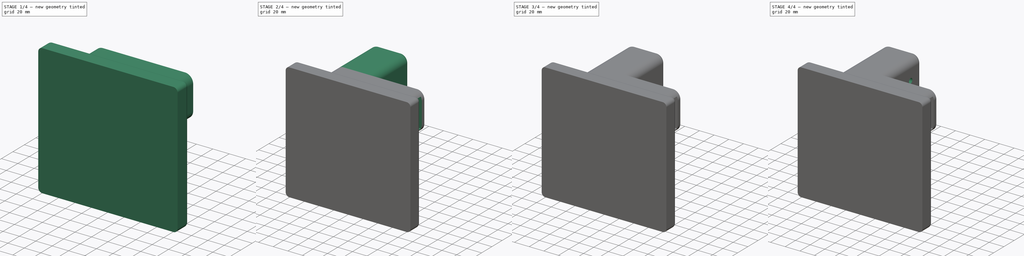
[diagram: build sequence overview — one tinted view per stage of 4, left to right]
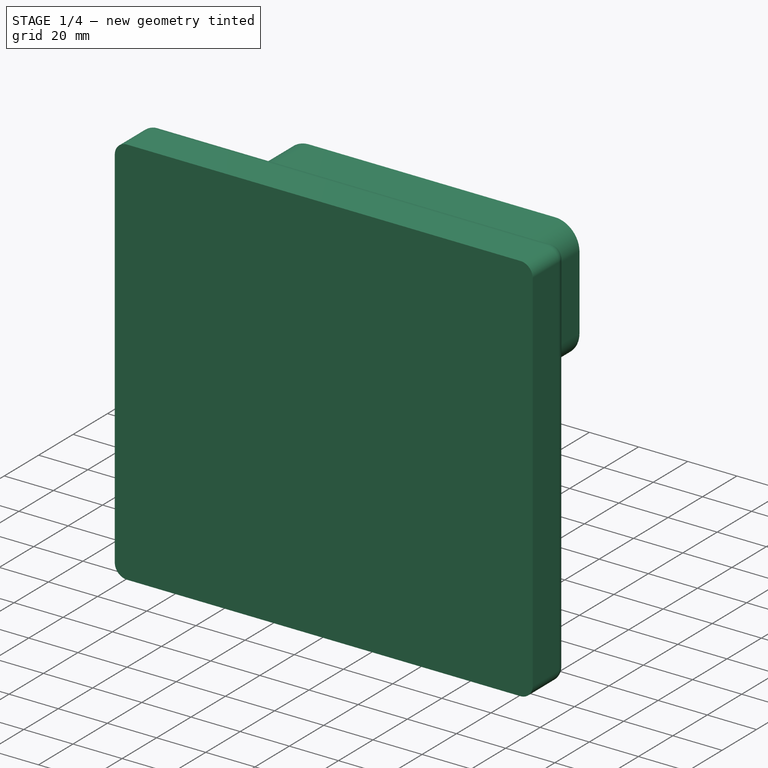
[diagram: stage 1 of 4 — iso view after this stage's code; geometry added in this stage tinted green]
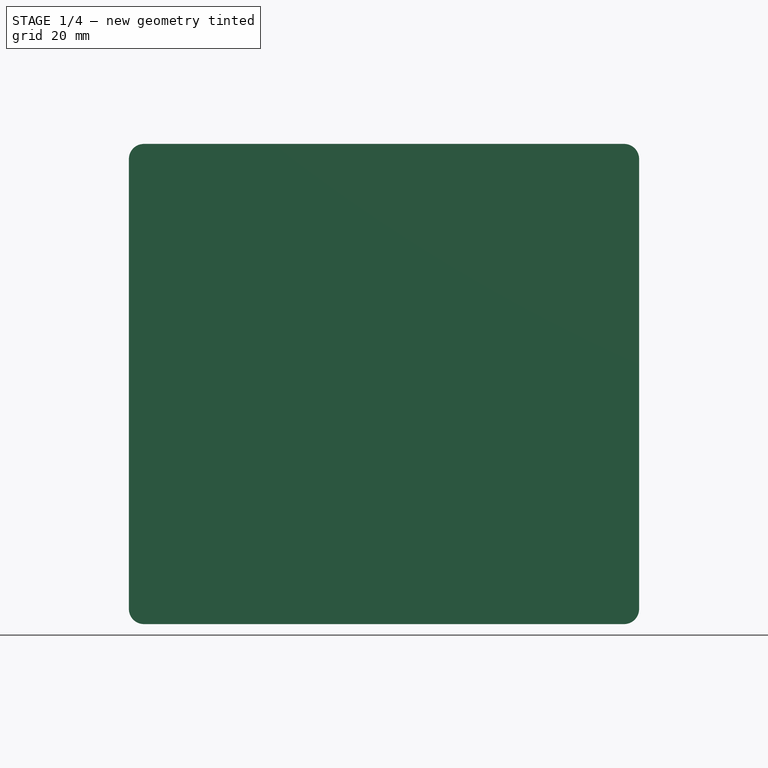
[diagram: stage 1 of 4 — front view after this stage's code; geometry added in this stage tinted green]
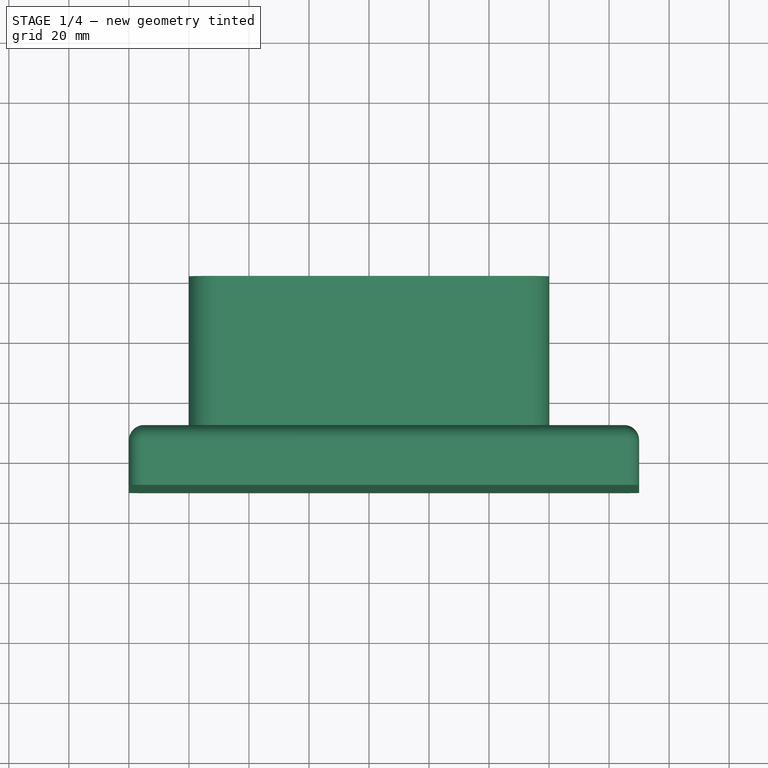
[diagram: stage 1 of 4 — top view after this stage's code; geometry added in this stage tinted green]
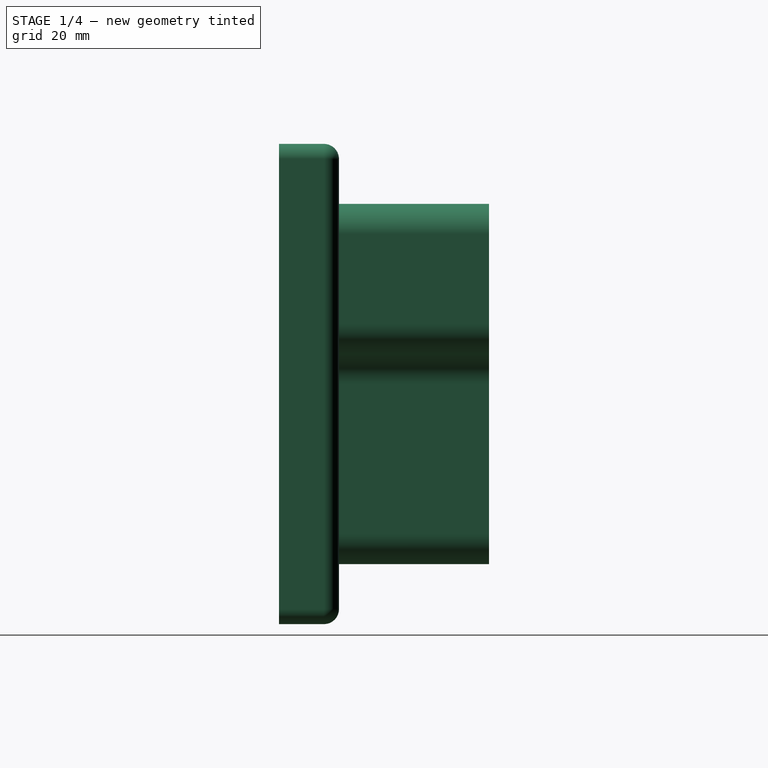
[diagram: stage 1 of 4 — right view after this stage's code; geometry added in this stage tinted green]
FCSTD DOCUMENT  (FreeCAD 0.21R33771 (Git))
Label: solow-cube-back-bottom-corner-left
License: All rights reserved
LicenseURL: http://en.wikipedia.org/wiki/All_rights_reserved
objects: Sketcher::SketchObject×9, PartDesign::Pad×3, PartDesign::Pocket×3, PartDesign::Hole×3, PartDesign::Fillet×2, PartDesign::Body×1
note: 32 computed .brp shape members not serialized (recipe doc carries the construction recipe); baked Part::Feature solids carry a one-line shape summary decoded from their .brp

FEATURE [Sketcher::SketchObject] Sketch
  FullyConstrained = true
  MapMode = 5
  Placement = pos=(0,0,0) rot=(1,0,0;1.5708rad)
  Support = -> [XZ_Plane]
  sketch-geometry (13):
    g0: LineSegment StartX=0 StartY=0 StartZ=0 EndX=0 EndY=40 EndZ=0
    g1: ArcOfCircle CenterX=10 CenterY=40 CenterZ=0 NormalX=0 NormalY=0 NormalZ=1 AngleXU=0 Radius=10 StartAngle=1.5708 EndAngle=3.14159
    g2: LineSegment StartX=10 StartY=50 StartZ=0 EndX=110 EndY=50 EndZ=0
    g3: ArcOfCircle CenterX=110 CenterY=40 CenterZ=0 NormalX=0 NormalY=0 NormalZ=1 AngleXU=0 Radius=10 StartAngle=6.28319 EndAngle=7.85398
    g4: LineSegment StartX=50 StartY=-10 StartZ=0 EndX=50 EndY=-60 EndZ=0
    g5: ArcOfCircle CenterX=40 CenterY=-60 CenterZ=0 NormalX=0 NormalY=0 NormalZ=1 AngleXU=0 Radius=10 StartAngle=4.71239 EndAngle=6.28319
    g6: LineSegment StartX=40 StartY=-70 StartZ=0 EndX=10 EndY=-70 EndZ=0
    g7: ArcOfCircle CenterX=10 CenterY=-60 CenterZ=0 NormalX=0 NormalY=0 NormalZ=1 AngleXU=0 Radius=10 StartAngle=3.14159 EndAngle=4.71239
    g8: LineSegment StartX=0 StartY=-60 StartZ=0 EndX=0 EndY=0 EndZ=0
    g9: LineSegment StartX=120 StartY=40 StartZ=0 EndX=120 EndY=10 EndZ=0
    g10: ArcOfCircle CenterX=110 CenterY=10 CenterZ=0 NormalX=0 NormalY=0 NormalZ=1 AngleXU=0 Radius=10 StartAngle=4.71238 EndAngle=6.28319
    g11: LineSegment StartX=110 StartY=8.7379e-11 StartZ=0 EndX=60 EndY=0 EndZ=0
    g12: ArcOfCircle CenterX=60 CenterY=-10 CenterZ=0 NormalX=0 NormalY=0 NormalZ=1 AngleXU=0 Radius=10 StartAngle=1.5708 EndAngle=3.14159
  constraints (36):
    c: Coincident(g-1,g0)
    c: PointOnObject(g0,g-2)
    c: Tangent(g0,g1) = 1.5708
    c: Coincident(g1,g2)
    c: Horizontal(g2)
    c: Tangent(g2,g3) = 1.5708
    c: Vertical(g4)
    c: Tangent(g4,g5) = 1.5708
    c: Tangent(g5,g6) = 1.5708
    c: Tangent(g6,g7) = 1.5708
    c: PointOnObject(g7,g-2)
    c: Coincident(g7,g8)
    c: Coincident(g8,g0)
    c: DistanceY(g0,g0) = 40
    c: Radius(g1) = 10
    c: Radius(g3) = 10
    c: DistanceX(g2,g2) = 100
    c: Radius(g7) = 10
    c: DistanceY(g8,g8) = 60
    c: Radius(g5) = 10
    c: Horizontal(g6)
    c: DistanceX(g7,g7) = 10
    c: DistanceX(g0,g1) = 10
    c: DistanceX(g0,g3) = 120
    c: Tangent(g3,g9) = 1.5708
    c: Tangent(g9,g10) = 1.5708
    c: PointOnObject(g10,g-1)
    c: Coincident(g10,g11)
    c: PointOnObject(g11,g-1)
    c: Tangent(g11,g12) = -1.5708
    c: Coincident(g12,g4)
    c: Radius(g12) = 10
    c: Radius(g10) = 10
    c: DistanceX(g7,g4) = 50
    c: DistanceX(g0,g11) = 60
    c: DistanceY(g9,g9) = 30
FEATURE [PartDesign::Pad] Pad
  Direction = (0,-1,2e-16)
  Length = 50
  Length2 = 10
  Placement = pos=(0,0,0) rot=(1,0,0;1.5708rad)
  Profile = -> Sketch
  ReferenceAxis = -> Sketch [N_Axis]
  Type = 0
FEATURE [Sketcher::SketchObject] Sketch001
  FullyConstrained = true
  MapMode = 5
  Placement = pos=(0,-50,1.11e-14) rot=(1,0,0;1.5708rad)
  sketch-geometry (4):
    g0: LineSegment StartX=-20 StartY=70 StartZ=0 EndX=150 EndY=70 EndZ=0
    g1: LineSegment StartX=150 StartY=70 StartZ=0 EndX=150 EndY=-90 EndZ=0
    g2: LineSegment StartX=150 StartY=-90 StartZ=0 EndX=-20 EndY=-90 EndZ=0
    g3: LineSegment StartX=-20 StartY=-90 StartZ=0 EndX=-20 EndY=70 EndZ=0
  constraints (12):
    c: Coincident(g0,g1)
    c: Coincident(g1,g2)
    c: Coincident(g2,g3)
    c: Coincident(g3,g0)
    c: Horizontal(g0)
    c: Horizontal(g2)
    c: Vertical(g1)
    c: Vertical(g3)
    c: DistanceY(g-1,g0) = 70
    c: DistanceY(g2,g-1) = 90
    c: DistanceX(g2,g-1) = 20
    c: DistanceX(g-1,g0) = 150
FEATURE [PartDesign::Pad] Pad001
  BaseFeature = -> Pad
  Direction = (0,-1,2e-16)
  Length = 20
  Length2 = 10
  Placement = pos=(0,0,0) rot=(1,0,0;1.5708rad)
  Profile = -> Sketch001
  ReferenceAxis = -> Sketch001 [N_Axis]
  Type = 0
FEATURE [PartDesign::Fillet] Fillet
  Base = -> Pad001 [Edge1,Edge5,Edge2,Edge3,Edge6,Edge9,Edge8,Edge11]
  BaseFeature = -> Pad001
  Placement = pos=(0,0,0) rot=(1,0,0;1.5708rad)
  Radius = 5
  SupportTransform = false
  UseAllEdges = false
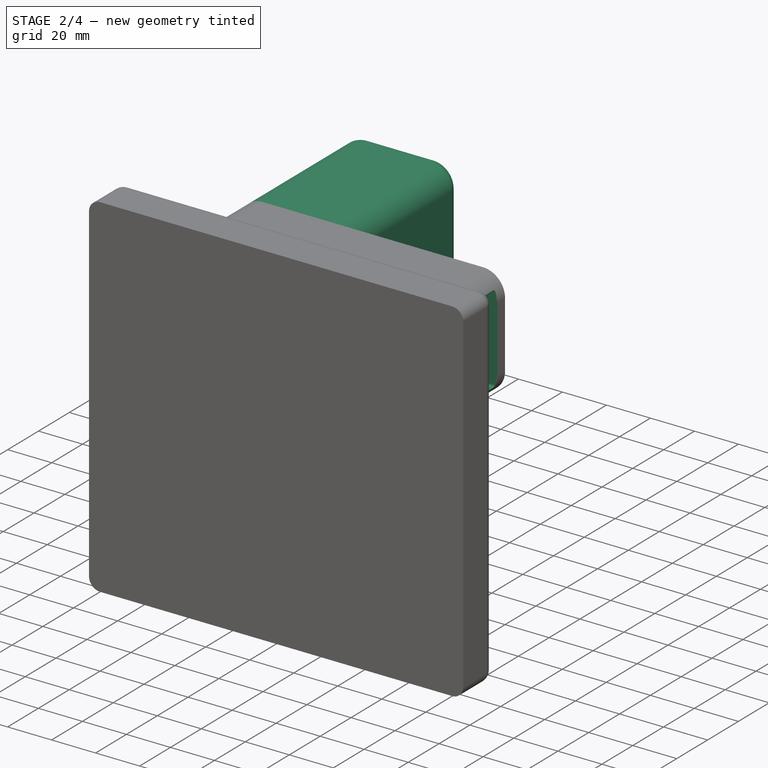
[diagram: stage 2 of 4 — iso view after this stage's code; geometry added in this stage tinted green]
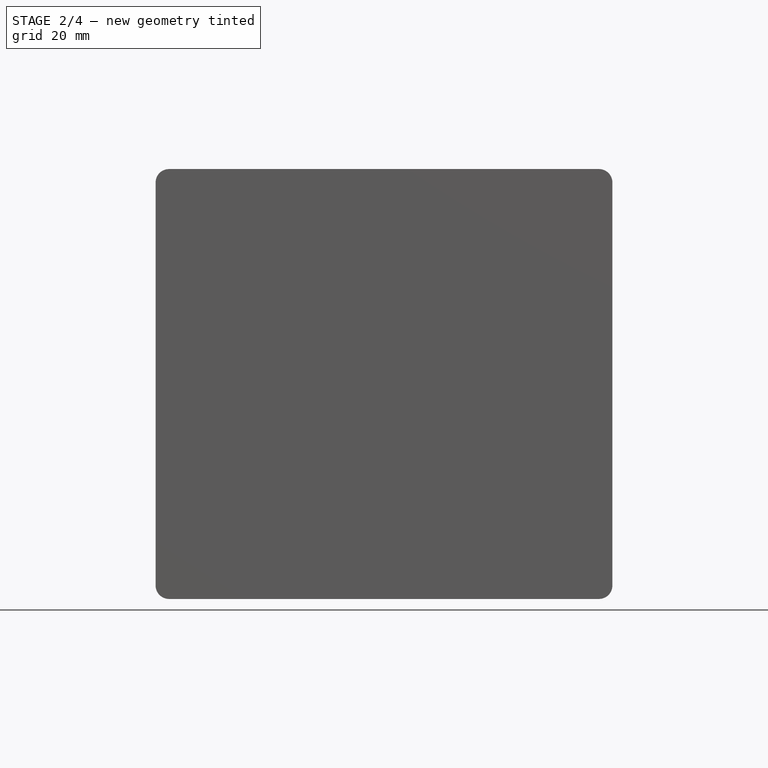
[diagram: stage 2 of 4 — front view after this stage's code; geometry added in this stage tinted green]
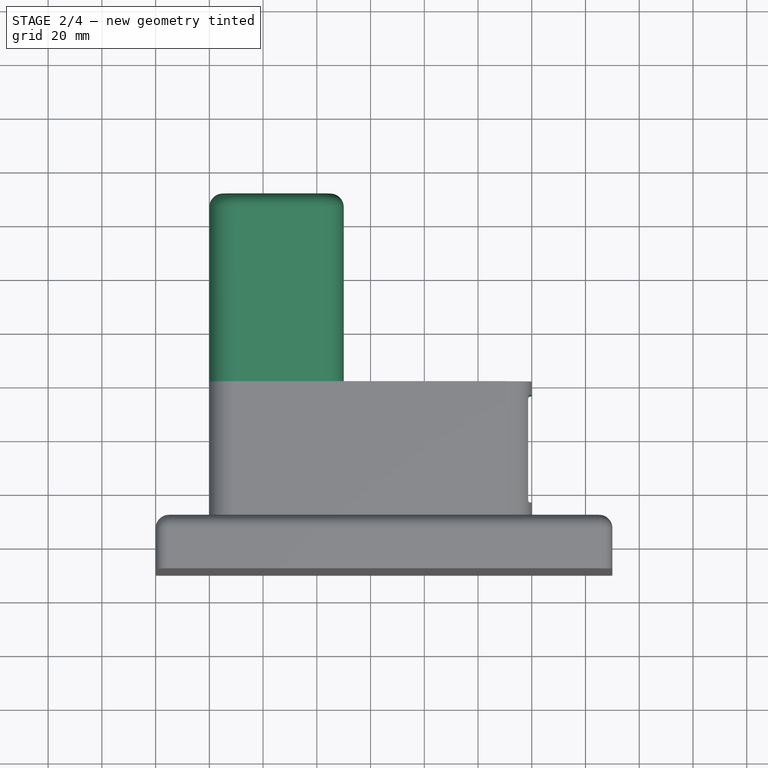
[diagram: stage 2 of 4 — top view after this stage's code; geometry added in this stage tinted green]
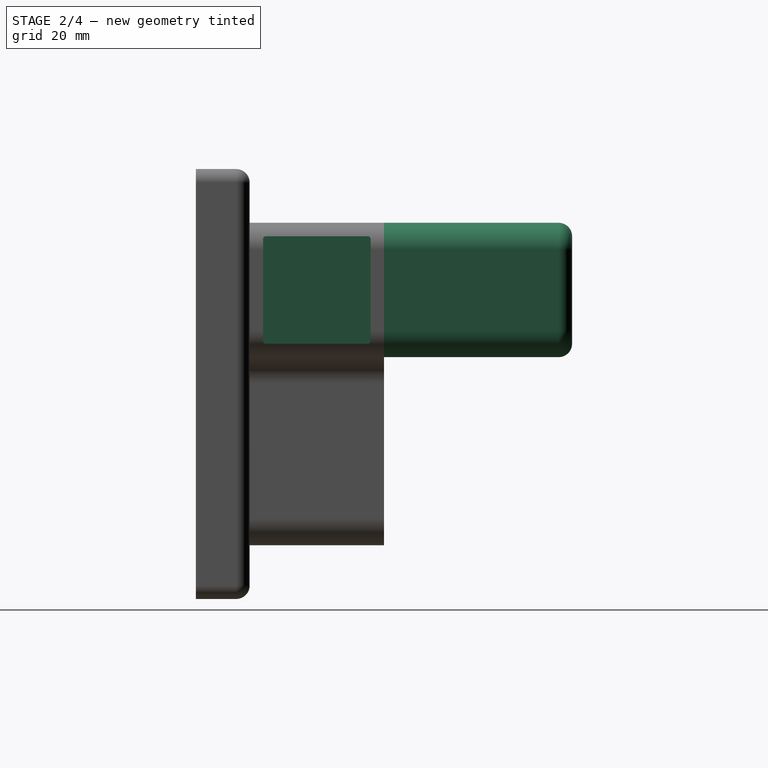
[diagram: stage 2 of 4 — right view after this stage's code; geometry added in this stage tinted green]
FEATURE [Sketcher::SketchObject] Sketch002
  FullyConstrained = true
  MapMode = 5
  Placement = pos=(0,0,0) rot=(-1,0,0;1.5708rad)
  sketch-geometry (8):
    g0: ArcOfCircle CenterX=10 CenterY=-40 CenterZ=0 NormalX=0 NormalY=0 NormalZ=1 AngleXU=0 Radius=10 StartAngle=3.14159 EndAngle=4.71239
    g1: LineSegment StartX=10 StartY=-50 StartZ=0 EndX=40 EndY=-50 EndZ=0
    g2: ArcOfCircle CenterX=40 CenterY=-40 CenterZ=0 NormalX=0 NormalY=0 NormalZ=1 AngleXU=0 Radius=10 StartAngle=4.71239 EndAngle=6.28319
    g3: LineSegment StartX=9.9298e-12 StartY=-40 StartZ=0 EndX=-4.22766e-05 EndY=-10 EndZ=0
    g4: ArcOfCircle CenterX=9.99996 CenterY=-10 CenterZ=0 NormalX=0 NormalY=0 NormalZ=1 AngleXU=0 Radius=10 StartAngle=1.57079 EndAngle=3.14159
    g5: LineSegment StartX=10 StartY=-8.93667e-11 StartZ=0 EndX=40 EndY=0 EndZ=0
    g6: ArcOfCircle CenterX=40 CenterY=-10 CenterZ=0 NormalX=0 NormalY=0 NormalZ=1 AngleXU=0 Radius=10 StartAngle=1.98484e-08 EndAngle=1.5708
    g7: LineSegment StartX=50 StartY=-10 StartZ=0 EndX=50 EndY=-40 EndZ=0
  constraints (24):
    c: Coincident(g0,g1)
    c: Horizontal(g1)
    c: Tangent(g1,g2) = -1.5708
    c: Radius(g2) = 10
    c: Tangent(g0,g3) = 1.5708
    c: Tangent(g3,g4) = 1.5708
    c: PointOnObject(g4,g-1)
    c: Coincident(g4,g5)
    c: PointOnObject(g5,g-1)
    c: Tangent(g5,g6) = 1.5708
    c: Coincident(g6,g7)
    c: Coincident(g7,g2)
    c: DistanceX(g-1,g6) = 40
    c: DistanceX(g0,g2) = 40
    c: DistanceX(g-1,g4) = 10
    c: DistanceX(g-1,g6) = 50
    c: DistanceX(g-1,g2) = 50
    c: DistanceX(g-1,g2) = 40
    c: DistanceX(g-1,g0) = 10
    c: DistanceY(g0,g-1) = 40
    c: DistanceY(g2,g-1) = 40
    c: Radius(g4) = 10
    c: Radius(g6) = 10
    c: Radius(g0) = 10
FEATURE [PartDesign::Pad] Pad002
  BaseFeature = -> Fillet
  Direction = (0,1,2e-16)
  Length = 70
  Length2 = 10
  Placement = pos=(0,0,0) rot=(1,0,0;1.5708rad)
  Profile = -> Sketch002
  ReferenceAxis = -> Sketch002 [N_Axis]
  Type = 0
FEATURE [PartDesign::Fillet] Fillet001
  Base = -> Pad002 [Edge103]
  BaseFeature = -> Pad002
  Placement = pos=(0,0,0) rot=(1,0,0;1.5708rad)
  Radius = 5
  SupportTransform = false
  UseAllEdges = false
FEATURE [Sketcher::SketchObject] Sketch003
  FullyConstrained = true
  MapMode = 5
  Placement = pos=(120,0,-4.68368e-06) rot=(0.707107,0,0.707107;3.14159rad)
  sketch-geometry (8):
    g0: LineSegment StartX=6.00044 StartY=5 StartZ=0 EndX=44 EndY=5 EndZ=0
    g1: ArcOfCircle CenterX=44 CenterY=6 CenterZ=0 NormalX=0 NormalY=0 NormalZ=1 AngleXU=0 Radius=1 StartAngle=4.71239 EndAngle=6.28319
    g2: LineSegment StartX=45 StartY=6 StartZ=0 EndX=45 EndY=44 EndZ=0
    g3: ArcOfCircle CenterX=44 CenterY=44 CenterZ=0 NormalX=0 NormalY=0 NormalZ=1 AngleXU=0 Radius=1 StartAngle=8.00925e-08 EndAngle=1.5708
    g4: LineSegment StartX=44 StartY=45 StartZ=0 EndX=6 EndY=45 EndZ=0
    g5: ArcOfCircle CenterX=6 CenterY=44 CenterZ=0 NormalX=0 NormalY=0 NormalZ=1 AngleXU=0 Radius=1 StartAngle=1.5708 EndAngle=3.14159
    g6: LineSegment StartX=5 StartY=44 StartZ=0 EndX=5 EndY=6 EndZ=0
    g7: ArcOfCircle CenterX=6 CenterY=6 CenterZ=0 NormalX=0 NormalY=0 NormalZ=1 AngleXU=0 Radius=1 StartAngle=3.14159 EndAngle=4.71283
  constraints (27):
    c: Coincident(g3,g4)
    c: Tangent(g4,g5) = -1.5708
    c: Coincident(g5,g6)
    c: Coincident(g7,g0)
    c: Horizontal(g0)
    c: DistanceY(g-1,g0) = 5
    c: DistanceX(g-1,g7) = 5
    c: Coincident(g7,g6)
    c: Vertical(g6)
    c: Radius(g7) = 1
    c: Radius(g5) = 1
    c: DistanceX(g4,g4) = 38
    c: DistanceX(g-1,g3) = 44
    c: Coincident(g2,g3)
    c: Coincident(g1,g0)
    c: DistanceY(g6,g6) = 38
    c: Coincident(g1,g2)
    c: DistanceX(g2) = 45
    c: Horizontal(g4)
    c: Radius(g3) = 1
    c: Vertical(g2)
    c: DistanceX(g-1,g7) = 6
    c: DistanceX(g-1,g3) = 44
    c: DistanceY(g1) = 6
    c: DistanceX(g1) = 44
    c: DistanceY(g-1,g1) = 6
    c: DistanceY(g2,g2) = 38
FEATURE [PartDesign::Pocket] Pocket
  BaseFeature = -> Fillet001
  Direction = (-1,0,3.90307e-08)
  Length = 70
  Length2 = 5
  Placement = pos=(0,0,0) rot=(1,0,0;1.5708rad)
  Profile = -> Sketch003
  ReferenceAxis = -> Sketch003 [N_Axis]
  Type = 0
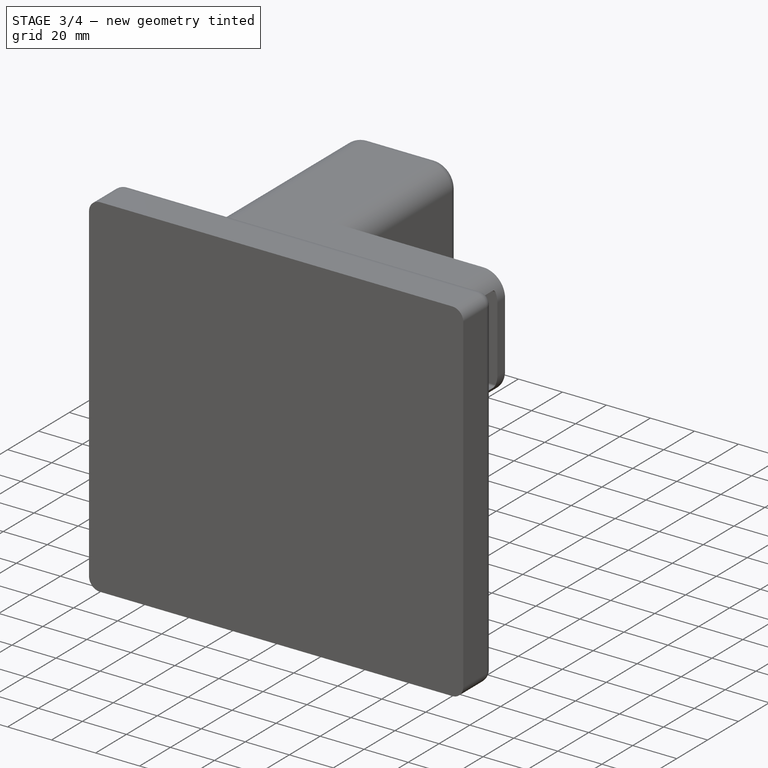
[diagram: stage 3 of 4 — iso view after this stage's code; geometry added in this stage tinted green]
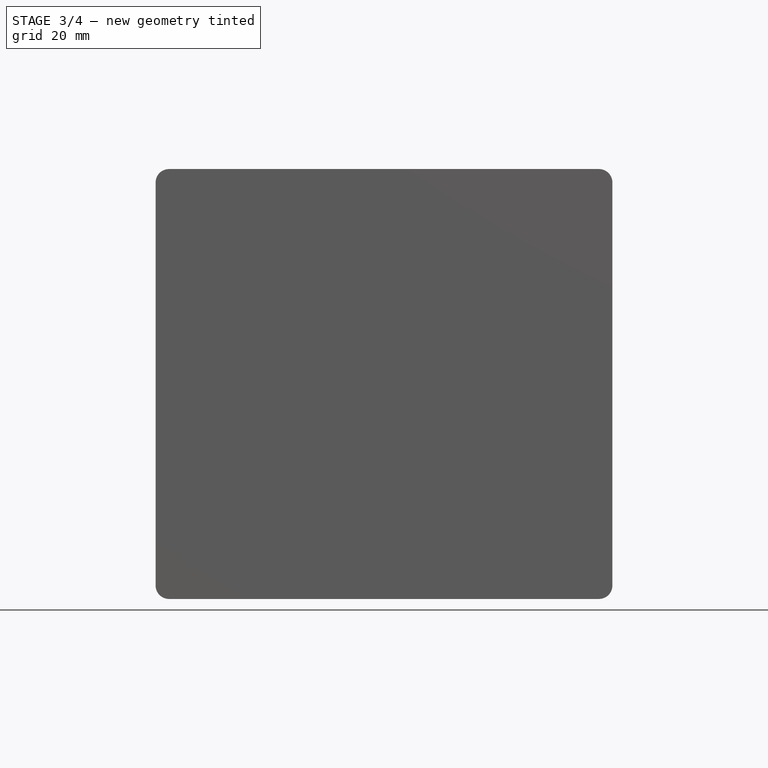
[diagram: stage 3 of 4 — front view after this stage's code; geometry added in this stage tinted green]
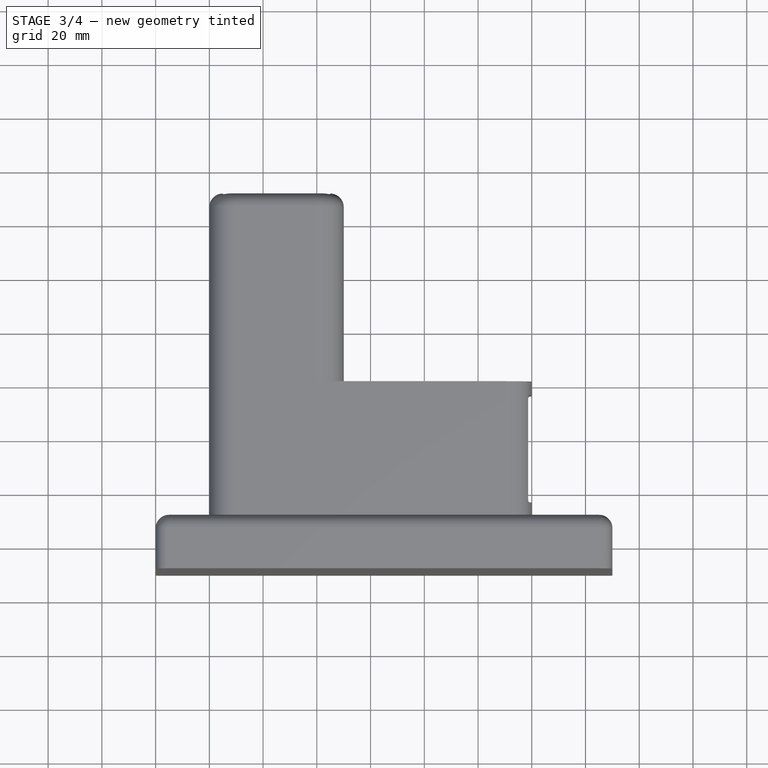
[diagram: stage 3 of 4 — top view after this stage's code; geometry added in this stage tinted green]
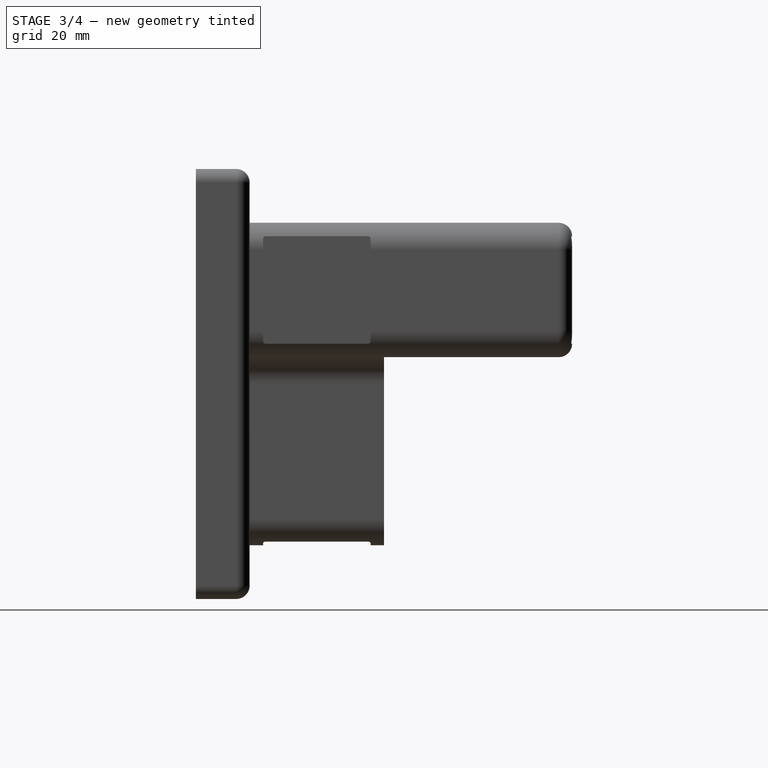
[diagram: stage 3 of 4 — right view after this stage's code; geometry added in this stage tinted green]
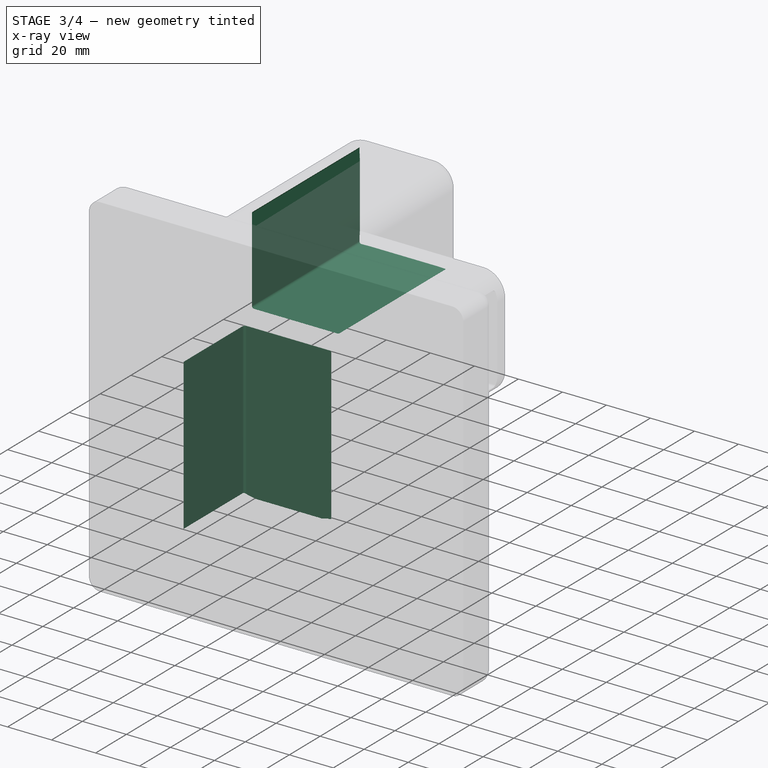
[diagram: stage 3 of 4 — x-ray composite at the iso view; earlier geometry ghosted, this stage's added geometry solid]
FEATURE [Sketcher::SketchObject] Sketch004
  FullyConstrained = true
  MapMode = 5
  Placement = pos=(0,-5.4e-14,-70) rot=(1,0,0;3.14159rad)
  sketch-geometry (8):
    g0: LineSegment StartX=5.99999 StartY=5 StartZ=0 EndX=44 EndY=5 EndZ=0
    g1: ArcOfCircle CenterX=44 CenterY=6 CenterZ=0 NormalX=0 NormalY=0 NormalZ=1 AngleXU=0 Radius=1 StartAngle=4.71238 EndAngle=6.28319
    g2: LineSegment StartX=45 StartY=6 StartZ=0 EndX=45 EndY=44 EndZ=0
    g3: ArcOfCircle CenterX=44 CenterY=44 CenterZ=0 NormalX=0 NormalY=0 NormalZ=1 AngleXU=0 Radius=1 StartAngle=6.28319 EndAngle=7.85398
    g4: LineSegment StartX=44 StartY=45 StartZ=0 EndX=6 EndY=45 EndZ=0
    g5: ArcOfCircle CenterX=6 CenterY=44 CenterZ=0 NormalX=0 NormalY=0 NormalZ=1 AngleXU=0 Radius=1 StartAngle=1.5708 EndAngle=3.14159
    g6: LineSegment StartX=5 StartY=44 StartZ=0 EndX=5 EndY=6 EndZ=0
    g7: ArcOfCircle CenterX=6 CenterY=6 CenterZ=0 NormalX=0 NormalY=0 NormalZ=1 AngleXU=0 Radius=1 StartAngle=3.14159 EndAngle=4.71238
  constraints (25):
    c: Horizontal(g0)
    c: Coincident(g1,g2)
    c: Vertical(g2)
    c: Coincident(g3,g4)
    c: Horizontal(g4)
    c: Tangent(g4,g5) = -1.5708
    c: Tangent(g5,g6) = -1.5708
    c: Tangent(g6,g7) = -1.5708
    c: Coincident(g7,g0)
    c: DistanceX(g-1,g7) = 6
    c: DistanceX(g-1,g6) = 5
    c: DistanceX(g-1,g5) = 5
    c: DistanceX(g-1,g5) = 6
    c: DistanceX(g-1,g3) = 44
    c: DistanceY(g-1,g6) = 6
    c: DistanceY(g0) = 5
    c: DistanceY(g6,g6) = 38
    c: DistanceX(g0,g0) = 38
    c: Coincident(g0,g1)
    c: DistanceY(g1) = 6
    c: DistanceY(g1) = 6
    c: DistanceX(g4,g4) = 38
    c: DistanceX(g3) = 45
    c: DistanceY(g3) = 44
    c: Coincident(g2,g3)
FEATURE [PartDesign::Pocket] Pocket001
  BaseFeature = -> Pocket
  Direction = (0,1e-15,1)
  Length = 70
  Length2 = 5
  Placement = pos=(0,0,0) rot=(1,0,0;1.5708rad)
  Profile = -> Sketch004
  ReferenceAxis = -> Sketch004 [N_Axis]
  Type = 0
FEATURE [Sketcher::SketchObject] Sketch005
  FullyConstrained = true
  MapMode = 5
  Placement = pos=(0,70,-4.6e-14) rot=(-1,0,0;1.5708rad)
  sketch-geometry (8):
    g0: LineSegment StartX=6 StartY=-4.99999 StartZ=0 EndX=44 EndY=-4.99999 EndZ=0
    g1: ArcOfCircle CenterX=44 CenterY=-5.99999 CenterZ=0 NormalX=0 NormalY=0 NormalZ=1 AngleXU=0 Radius=1 StartAngle=6.28318 EndAngle=7.85398
    g2: LineSegment StartX=45 StartY=-6 StartZ=0 EndX=45 EndY=-44 EndZ=0
    g3: ArcOfCircle CenterX=44 CenterY=-44 CenterZ=0 NormalX=0 NormalY=0 NormalZ=1 AngleXU=0 Radius=1 StartAngle=4.71239 EndAngle=6.28319
    g4: LineSegment StartX=44 StartY=-45 StartZ=0 EndX=6 EndY=-45 EndZ=0
    g5: ArcOfCircle CenterX=6 CenterY=-44 CenterZ=0 NormalX=0 NormalY=0 NormalZ=1 AngleXU=0 Radius=1 StartAngle=3.14159 EndAngle=4.71239
    g6: LineSegment StartX=5 StartY=-44 StartZ=0 EndX=5 EndY=-6 EndZ=0
    g7: ArcOfCircle CenterX=6 CenterY=-5.99999 CenterZ=0 NormalX=0 NormalY=0 NormalZ=1 AngleXU=0 Radius=1 StartAngle=1.5708 EndAngle=3.1416
  constraints (29):
    c: Horizontal(g0)
    c: Coincident(g3,g4)
    c: Horizontal(g4)
    c: Coincident(g5,g6)
    c: Vertical(g6)
    c: Coincident(g7,g0)
    c: DistanceX(g-1,g6) = 5
    c: DistanceX(g-1,g0) = 6
    c: DistanceX(g-1,g7) = 6
    c: DistanceX(g-1,g0) = 44
    c: DistanceX(g-1,g1) = 45
    c: DistanceX(g-1,g4) = 6
    c: DistanceX(g-1,g3) = 44
    c: DistanceX(g-1,g2) = 45
    c: DistanceY(g6,g-1) = 6
    c: DistanceY(g5,g-1) = 44
    c: DistanceY(g4,g-1) = 45
    c: Radius(g5) = 1
    c: DistanceY(g3,g-1) = 44
    c: Coincident(g3,g2)
    c: DistanceY(g2,g2) = 38
    c: Coincident(g1,g2)
    c: Coincident(g0,g1)
    c: DistanceX(g-1,g1) = 44
    c: DistanceX(g-1,g5) = 6
    c: DistanceX(g5) = 6
    c: Coincident(g7,g6)
    c: Radius(g7) = 1
    c: Radius(g3) = 1
FEATURE [PartDesign::Pocket] Pocket002
  BaseFeature = -> Pocket001
  Direction = (0,-1,1.1e-15)
  Length = 70
  Length2 = 5
  Placement = pos=(0,0,0) rot=(1,0,0;1.5708rad)
  Profile = -> Sketch005
  ReferenceAxis = -> Sketch005 [N_Axis]
  Type = 0
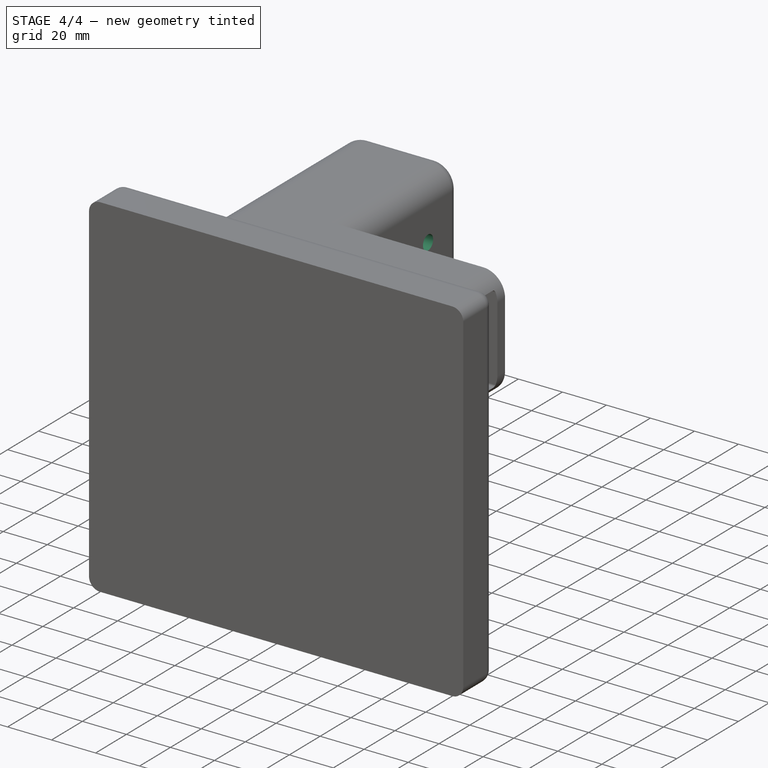
[diagram: stage 4 of 4 — iso view after this stage's code; geometry added in this stage tinted green]
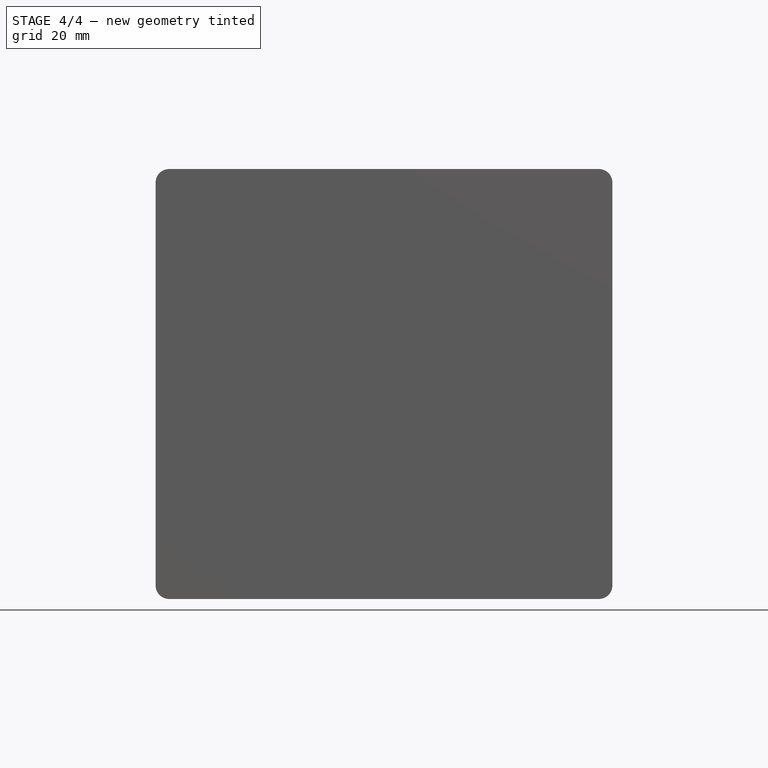
[diagram: stage 4 of 4 — front view after this stage's code; geometry added in this stage tinted green]
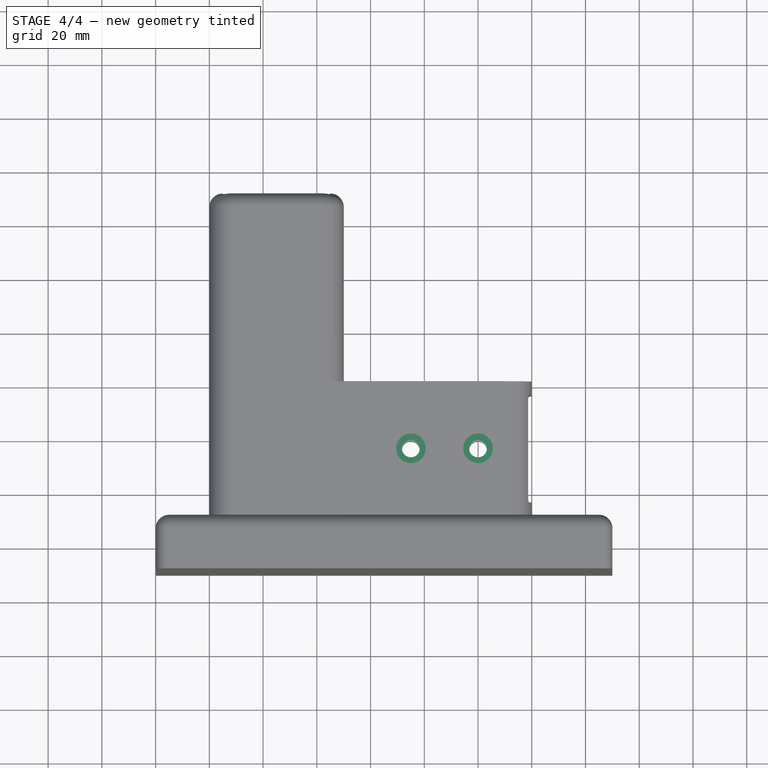
[diagram: stage 4 of 4 — top view after this stage's code; geometry added in this stage tinted green]
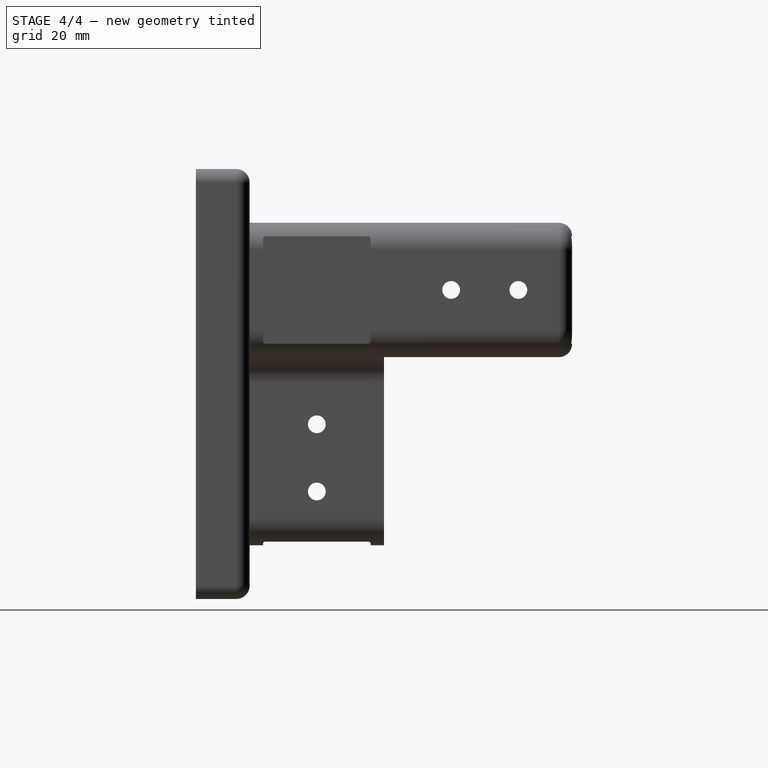
[diagram: stage 4 of 4 — right view after this stage's code; geometry added in this stage tinted green]
FEATURE [Sketcher::SketchObject] Sketch006
  FullyConstrained = true
  MapMode = 5
  Placement = pos=(0,5e-14,50) rot=(0,0,1;3.14159rad)
  sketch-geometry (2):
    g0: Circle CenterX=-75 CenterY=25 CenterZ=0 NormalX=0 NormalY=0 NormalZ=1 AngleXU=0 Radius=2.5
    g1: Circle CenterX=-100 CenterY=25 CenterZ=0 NormalX=0 NormalY=0 NormalZ=1 AngleXU=0 Radius=2.5
  constraints (6):
    c: DistanceX(g0,g-1) = 75
    c: DistanceX(g1,g-1) = 100
    c: DistanceY(g-1,g1) = 25
    c: DistanceY(g-1,g0) = 25
    c: Diameter(g0) = 5
    c: Diameter(g1) = 5
FEATURE [Sketcher::SketchObject] Sketch007
  FullyConstrained = true
  MapMode = 5
  Placement = pos=(0,0,0) rot=(0.707107,0,-0.707107;3.14159rad)
  sketch-geometry (2):
    g0: Circle CenterX=50 CenterY=25 CenterZ=0 NormalX=0 NormalY=0 NormalZ=1 AngleXU=0 Radius=2.5
    g1: Circle CenterX=25 CenterY=25 CenterZ=0 NormalX=0 NormalY=0 NormalZ=1 AngleXU=0 Radius=2.5
  constraints (6):
    c: DistanceX(g-1,g1) = 25
    c: DistanceX(g-1,g0) = 50
    c: DistanceY(g-1,g1) = 25
    c: DistanceY(g-1,g0) = 25
    c: Diameter(g1) = 5
    c: Diameter(g0) = 5
FEATURE [Sketcher::SketchObject] Sketch010
  FullyConstrained = true
  MapMode = 5
  Placement = pos=(-5.63689e-05,0,7.94362e-11) rot=(-0.707106,0,0.707107;3.14159rad)
  sketch-geometry (2):
    g0: Circle CenterX=-25 CenterY=-25 CenterZ=0 NormalX=0 NormalY=0 NormalZ=1 AngleXU=0 Radius=3
    g1: Circle CenterX=-25 CenterY=-50 CenterZ=0 NormalX=0 NormalY=0 NormalZ=1 AngleXU=0 Radius=3
  constraints (6):
    c: DistanceY(g1) = -50
    c: DistanceY(g0) = -25
    c: DistanceX(g0) = -25
    c: DistanceX(g1) = -25
    c: Diameter(g0) = 6
    c: Diameter(g1) = 6
FEATURE [PartDesign::Hole] Hole
  BaseFeature = -> Pocket002
  CustomThreadClearance = 0
  Depth = 549.871
  DepthType = 1
  Diameter = 6.6
  DrillForDepth = false
  DrillPoint = 1
  DrillPointAngle = 118
  HoleCutCountersinkAngle = 90
  HoleCutCustomValues = false
  HoleCutDepth = 1.8
  HoleCutDiameter = 11
  HoleCutType = 1
  ModelThread = false
  Placement = pos=(0,0,0) rot=(1,0,0;1.5708rad)
  Profile = -> Sketch006
  Tapered = false
  TaperedAngle = 90
  ThreadClass = 0
  ThreadDepth = 549.871
  ThreadDepthType = 0
  ThreadDirection = 0
  ThreadFit = 0
  ThreadSize = 14
  ThreadType = 1
  Threaded = false
  UseCustomThreadClearance = false
FEATURE [PartDesign::Hole] Hole001
  BaseFeature = -> Hole
  CustomThreadClearance = 0
  Depth = 549.871
  DepthType = 1
  Diameter = 6.6
  DrillForDepth = false
  DrillPoint = 1
  DrillPointAngle = 118
  HoleCutCountersinkAngle = 90
  HoleCutCustomValues = false
  HoleCutDepth = 1.8
  HoleCutDiameter = 11
  HoleCutType = 1
  ModelThread = false
  Placement = pos=(0,0,0) rot=(1,0,0;1.5708rad)
  Profile = -> Sketch007
  Tapered = false
  TaperedAngle = 90
  ThreadClass = 0
  ThreadDepth = 549.871
  ThreadDepthType = 0
  ThreadDirection = 0
  ThreadFit = 0
  ThreadSize = 14
  ThreadType = 1
  Threaded = false
  UseCustomThreadClearance = false
FEATURE [PartDesign::Hole] Hole002
  BaseFeature = -> Hole001
  CustomThreadClearance = 0
  Depth = 549.871
  DepthType = 1
  Diameter = 6.6
  DrillForDepth = false
  DrillPoint = 1
  DrillPointAngle = 118
  HoleCutCountersinkAngle = 90
  HoleCutCustomValues = false
  HoleCutDepth = 1.8
  HoleCutDiameter = 11
  HoleCutType = 1
  ModelThread = false
  Placement = pos=(0,0,0) rot=(1,0,0;1.5708rad)
  Profile = -> Sketch010
  Tapered = false
  TaperedAngle = 90
  ThreadClass = 0
  ThreadDepth = 549.871
  ThreadDepthType = 0
  ThreadDirection = 0
  ThreadFit = 0
  ThreadSize = 14
  ThreadType = 1
  Threaded = false
  UseCustomThreadClearance = false
FEATURE [PartDesign::Body] Body
  Group = -> [Sketch,Pad,Sketch001,Pad001,Fillet,Sketch002,Pad002,Fillet001,Sketch003,Pocket,Sketch004,Pocket001,Sketch005,Pocket002,Sketch006,Sketch007,Sketch010,Hole,Hole001,Hole002]
  Origin = -> Origin
  Tip = -> Hole002
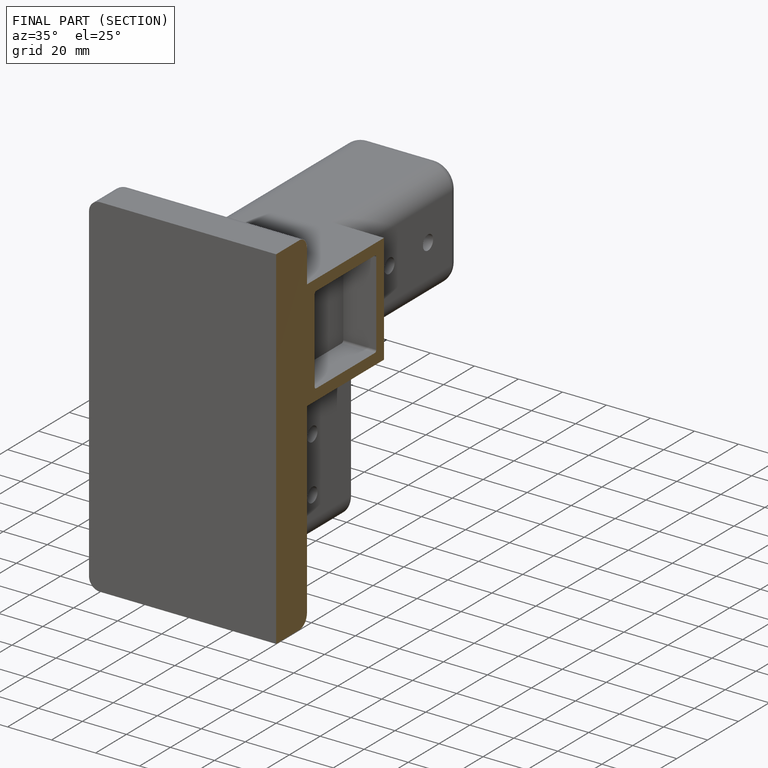
[diagram: finished part — half-section view (interior)]
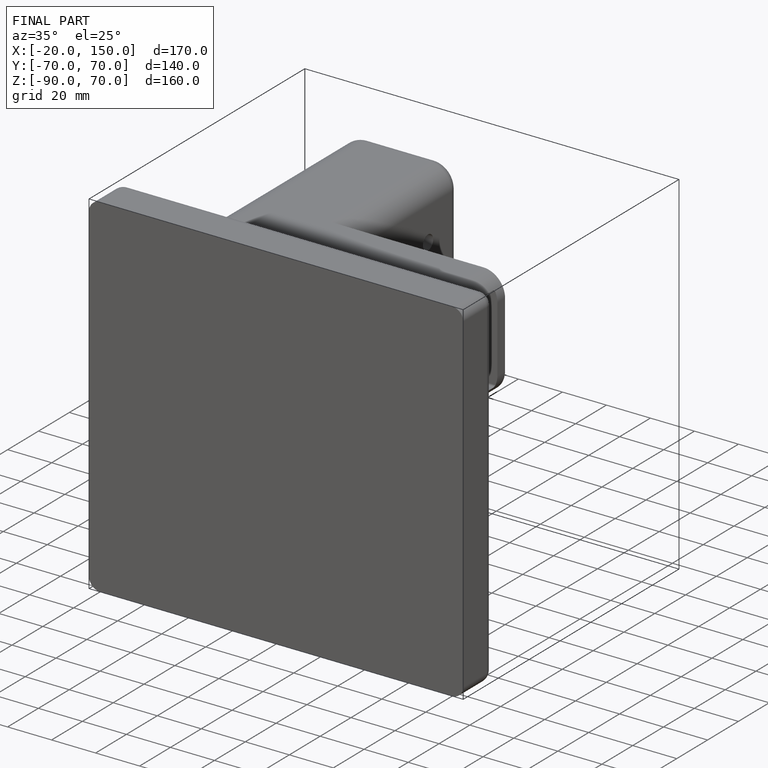
[diagram: finished part — iso view with bounding-box wireframe]
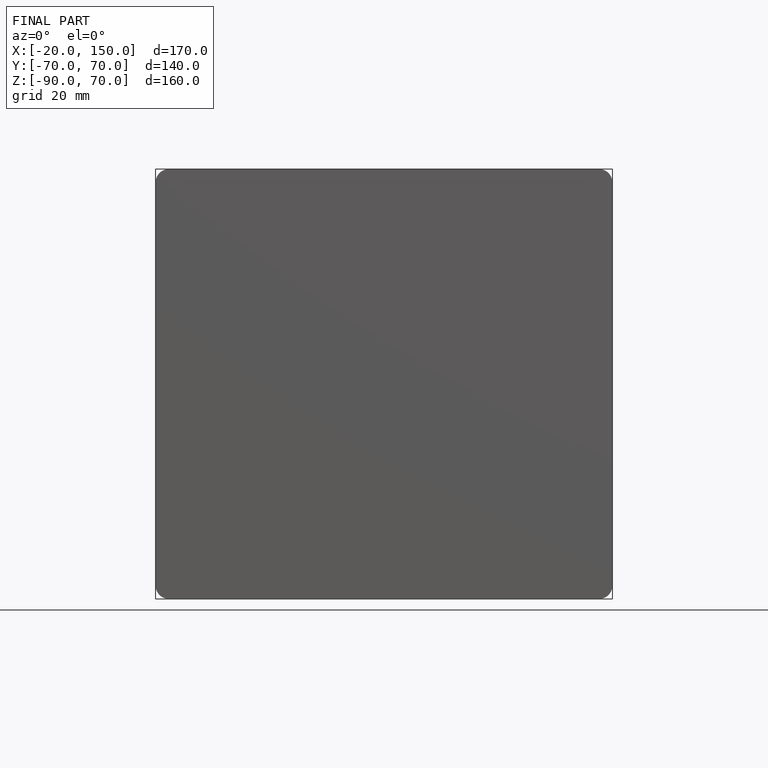
[diagram: finished part — front view with bounding-box wireframe]
